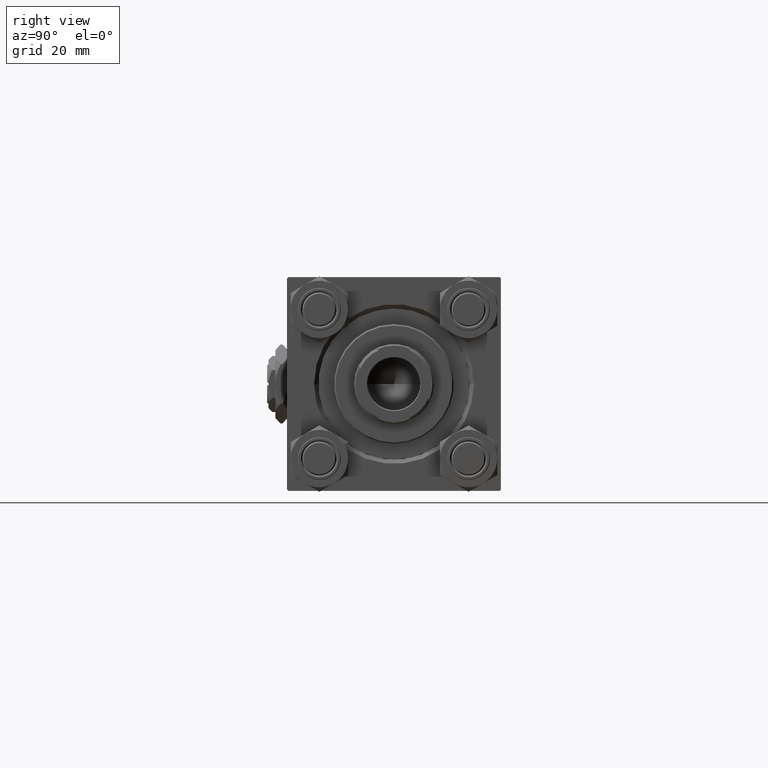
[diagram: clean part render]
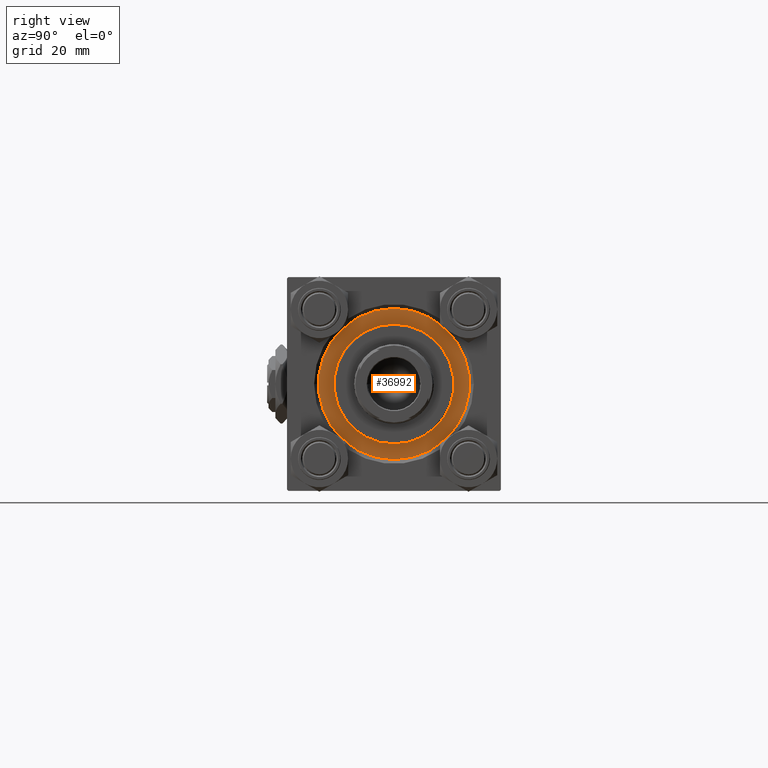
[diagram: same view with one face highlighted and labeled with its STEP entity id]
A machine part, right view. The second image highlights one B-rep face of the part: STEP entity #36992.
In plain terms, the highlighted planar face has unit normal (1, -0, 0).
Its self-contained STEP definition (entity closure, byte-faithful):
#1063 = ORIENTED_EDGE ( 'NONE', *, *, #24782, .T. ) ;
#3153 = FACE_OUTER_BOUND ( 'NONE', #25687, .T. ) ;
#4241 = CARTESIAN_POINT ( 'NONE',  ( 0.000000000000000000, 0.000000000000000000, 28.69999999999999929 ) ) ;
#4733 = ORIENTED_EDGE ( 'NONE', *, *, #25621, .T. ) ;
#6668 = AXIS2_PLACEMENT_3D ( 'NONE', #19805, #35664, #35152 ) ;
#9786 = CARTESIAN_POINT ( 'NONE',  ( -26.50000000000000355, 0.000000000000000000, 28.69999999999999929 ) ) ;
#9862 = CIRCLE ( 'NONE', #38947, 26.50000000000000355 ) ;
#10448 = DIRECTION ( 'NONE',  ( 0.000000000000000000, 0.000000000000000000, 1.000000000000000000 ) ) ;
#10647 = ORIENTED_EDGE ( 'NONE', *, *, #40544, .F. ) ;
#10741 = CARTESIAN_POINT ( 'NONE',  ( 0.000000000000000000, 0.000000000000000000, 28.69999999999999929 ) ) ;
#13102 = CARTESIAN_POINT ( 'NONE',  ( 0.000000000000000000, 0.000000000000000000, 28.69999999999999929 ) ) ;
#13786 = EDGE_LOOP ( 'NONE', ( #25535, #10647 ) ) ;
#19805 = CARTESIAN_POINT ( 'NONE',  ( 0.000000000000000000, 0.000000000000000000, 28.69999999999999929 ) ) ;
#19844 = DIRECTION ( 'NONE',  ( 0.000000000000000000, 0.000000000000000000, 1.000000000000000000 ) ) ;
#21163 = DIRECTION ( 'NONE',  ( 1.000000000000000000, 0.000000000000000000, 0.000000000000000000 ) ) ;
#21555 = CIRCLE ( 'NONE', #35715, 26.50000000000000355 ) ;
#23703 = VERTEX_POINT ( 'NONE', #25141 ) ;
#23768 = VERTEX_POINT ( 'NONE', #9786 ) ;
#23776 = VERTEX_POINT ( 'NONE', #34214 ) ;
#24250 = DIRECTION ( 'NONE',  ( 1.000000000000000000, 0.000000000000000000, 0.000000000000000000 ) ) ;
#24369 = AXIS2_PLACEMENT_3D ( 'NONE', #30464, #10448, #26304 ) ;
#24722 = VERTEX_POINT ( 'NONE', #25315 ) ;
#24782 = EDGE_CURVE ( 'NONE', #23768, #24722, #21555, .T. ) ;
#25141 = CARTESIAN_POINT ( 'NONE',  ( 21.00000000000000000, 2.571758278209441661E-15, 28.69999999999999929 ) ) ;
#25315 = CARTESIAN_POINT ( 'NONE',  ( 26.50000000000000355, 3.245314017740486554E-15, 28.69999999999999929 ) ) ;
#25535 = ORIENTED_EDGE ( 'NONE', *, *, #30174, .F. ) ;
#25552 = AXIS2_PLACEMENT_3D ( 'NONE', #4241, #19844, #24250 ) ;
#25621 = EDGE_CURVE ( 'NONE', #24722, #23768, #9862, .T. ) ;
#25687 = EDGE_LOOP ( 'NONE', ( #1063, #4733 ) ) ;
#26304 = DIRECTION ( 'NONE',  ( 1.000000000000000000, 0.000000000000000000, -0.000000000000000000 ) ) ;
#30174 = EDGE_CURVE ( 'NONE', #23776, #23703, #40763, .T. ) ;
#30239 = DIRECTION ( 'NONE',  ( 0.000000000000000000, 0.000000000000000000, 1.000000000000000000 ) ) ;
#30464 = CARTESIAN_POINT ( 'NONE',  ( 0.000000000000000000, 0.000000000000000000, 28.69999999999999929 ) ) ;
#34214 = CARTESIAN_POINT ( 'NONE',  ( -21.00000000000000000, 0.000000000000000000, 28.69999999999999929 ) ) ;
#35152 = DIRECTION ( 'NONE',  ( 1.000000000000000000, 0.000000000000000000, 0.000000000000000000 ) ) ;
#35664 = DIRECTION ( 'NONE',  ( 0.000000000000000000, 0.000000000000000000, 1.000000000000000000 ) ) ;
#35715 = AXIS2_PLACEMENT_3D ( 'NONE', #10741, #30239, #50008 ) ;
#36992 = ADVANCED_FACE ( 'NONE', ( #38795, #3153 ), #49978, .T. ) ;
#38795 = FACE_BOUND ( 'NONE', #13786, .T. ) ;
#38868 = CIRCLE ( 'NONE', #25552, 21.00000000000000000 ) ;
#38947 = AXIS2_PLACEMENT_3D ( 'NONE', #13102, #44840, #21163 ) ;
#40544 = EDGE_CURVE ( 'NONE', #23703, #23776, #38868, .T. ) ;
#40763 = CIRCLE ( 'NONE', #6668, 21.00000000000000000 ) ;
#44840 = DIRECTION ( 'NONE',  ( 0.000000000000000000, 0.000000000000000000, 1.000000000000000000 ) ) ;
#49978 = PLANE ( 'NONE',  #24369 ) ;
#50008 = DIRECTION ( 'NONE',  ( 1.000000000000000000, 0.000000000000000000, 0.000000000000000000 ) ) ;